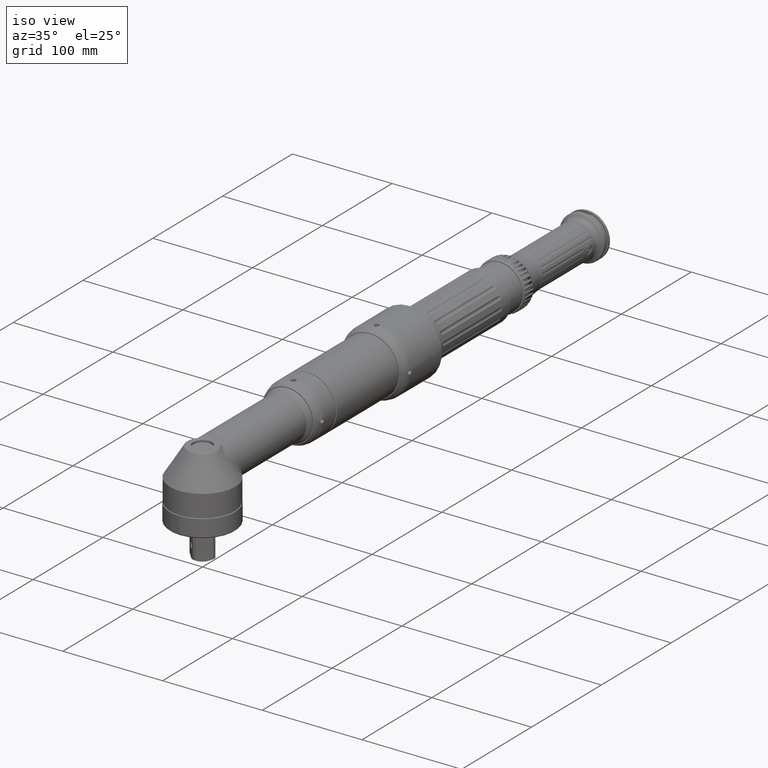
[diagram: clean part render]
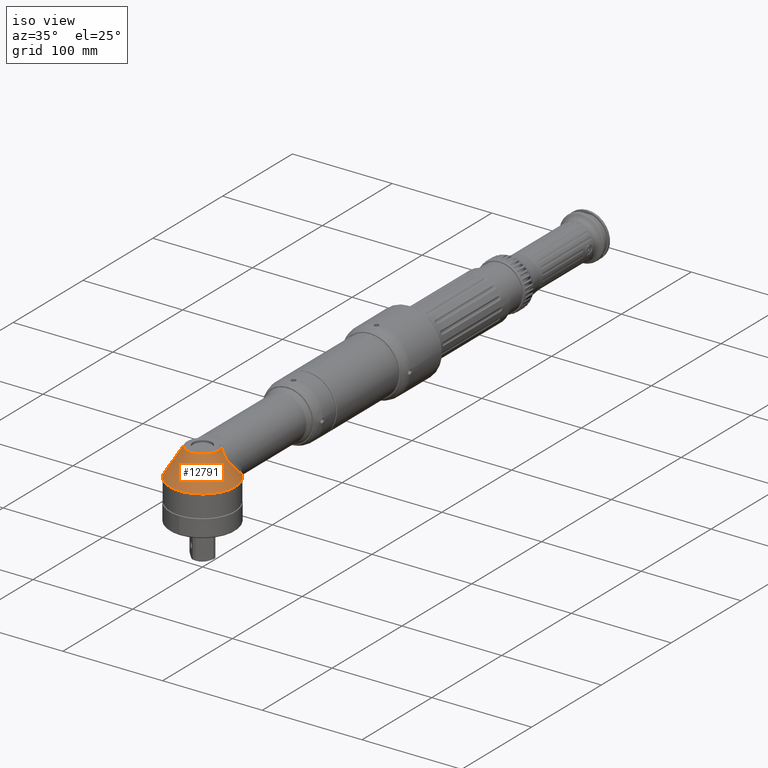
[diagram: same view with one face highlighted and labeled with its STEP entity id]
A machine part, iso view. The second image highlights one B-rep face of the part: STEP entity #12791.
In plain terms, the highlighted conical surface has half-angle 31.827 deg.
Its self-contained STEP definition (entity closure, byte-faithful):
#2552=FACE_OUTER_BOUND('',#3382,.T.);
#3382=EDGE_LOOP('',(#8397,#8398,#8399,#8400));
#4478=CIRCLE('',#13639,15.5867219646892);
#4479=CIRCLE('',#13640,33.);
#5320=B_SPLINE_CURVE_WITH_KNOTS('',3,(#19599,#19600,#19601,#19602,#19603,
#19604,#19605,#19606,#19607,#19608,#19609),.UNSPECIFIED.,.F.,.F.,(4,1,1,
1,1,1,1,1,4),(-7.39687350560686,-6.81460219103651,-6.52346653375134,-6.23233087646616,
-5.94119521918099,-5.65005956189582,-5.06778824732547,-4.48551693275512,
-3.40726503351453),.UNSPECIFIED.);
#5321=B_SPLINE_CURVE_WITH_KNOTS('',3,(#19613,#19614,#19615,#19616,#19617,
#19618,#19619,#19620,#19621,#19622,#19623,#19624),.UNSPECIFIED.,.F.,.F.,
(4,1,1,1,1,1,1,1,1,4),(-3.98960893643808,-2.91197512039487,-2.3295800963159,
-1.74718507223693,-1.45598756019744,-1.16479004815795,-0.873592536118464,
-0.582395024078977,-0.29119751203949,-2.83381824027543E-15),
 .UNSPECIFIED.);
#5445=VERTEX_POINT('',#19597);
#5446=VERTEX_POINT('',#19598);
#5447=VERTEX_POINT('',#19610);
#5448=VERTEX_POINT('',#19612);
#6640=EDGE_CURVE('',#5445,#5446,#5320,.T.);
#6641=EDGE_CURVE('',#5447,#5445,#4478,.T.);
#6642=EDGE_CURVE('',#5448,#5447,#5321,.T.);
#6643=EDGE_CURVE('',#5448,#5446,#4479,.T.);
#8397=ORIENTED_EDGE('',*,*,#6640,.F.);
#8398=ORIENTED_EDGE('',*,*,#6641,.F.);
#8399=ORIENTED_EDGE('',*,*,#6642,.F.);
#8400=ORIENTED_EDGE('',*,*,#6643,.T.);
#11927=CONICAL_SURFACE('',#13638,24.,31.8274465766731);
#12791=ADVANCED_FACE('',(#2552),#11927,.T.);
#13638=AXIS2_PLACEMENT_3D('',#19596,#15399,#15400);
#13639=AXIS2_PLACEMENT_3D('',#19611,#15401,#15402);
#13640=AXIS2_PLACEMENT_3D('',#19625,#15403,#15404);
#15399=DIRECTION('center_axis',(1.22464679914735E-16,0.,-1.));
#15400=DIRECTION('ref_axis',(-1.,0.,0.));
#15401=DIRECTION('center_axis',(-2.84915077625764E-16,-3.16319279242987E-32,
1.));
#15402=DIRECTION('ref_axis',(1.11022302462516E-16,-1.,0.));
#15403=DIRECTION('center_axis',(-1.22464679914735E-16,0.,1.));
#15404=DIRECTION('ref_axis',(1.,0.,1.22464679914735E-16));
#19596=CARTESIAN_POINT('Origin',(-6.73555739531041E-16,1.77635683940025E-14,
5.49999999999998));
#19597=CARTESIAN_POINT('',(13.4496542003608,7.8773538383927,19.0547257235564));
#19598=CARTESIAN_POINT('',(24.1633576944182,22.4751450480491,-8.99999999996307));
#19599=CARTESIAN_POINT('Ctrl Pts',(13.4496542003608,7.87735383839267,19.0547257235564));
#19600=CARTESIAN_POINT('Ctrl Pts',(14.5835538682263,7.24277462687761,17.9950600723712));
#19601=CARTESIAN_POINT('Ctrl Pts',(16.2055454026726,6.22764084460385,16.2628446742604));
#19602=CARTESIAN_POINT('Ctrl Pts',(18.3727712207136,5.28555456465171,13.3721204606103));
#19603=CARTESIAN_POINT('Ctrl Pts',(19.9529440859647,5.42918248754141,10.8509452130513));
#19604=CARTESIAN_POINT('Ctrl Pts',(21.1887740109933,6.52238193304304,8.45977980193469));
#19605=CARTESIAN_POINT('Ctrl Pts',(22.4419512567544,8.4999006416821,5.54204531813251));
#19606=CARTESIAN_POINT('Ctrl Pts',(23.5164375643155,11.4277649591789,2.12763753171971));
#19607=CARTESIAN_POINT('Ctrl Pts',(24.4446884276347,16.2631509169494,-2.96540840113903));
#19608=CARTESIAN_POINT('Ctrl Pts',(24.4471248562336,20.0265421133851,-6.64851974216371));
#19609=CARTESIAN_POINT('Ctrl Pts',(24.163424714903,22.4750886310562,-9.0000781235005));
#19610=CARTESIAN_POINT('',(-13.4496542003609,7.87735383839261,19.0547257235563));
#19611=CARTESIAN_POINT('Origin',(-1.55746858439835E-15,1.77635683940025E-14,
19.0547257235563));
#19612=CARTESIAN_POINT('',(-24.1633576944087,22.4751450480718,-8.99999999999048));
#19613=CARTESIAN_POINT('Ctrl Pts',(-24.1634250630554,22.4750866483978,-9.00008044959264));
#19614=CARTESIAN_POINT('Ctrl Pts',(-24.4469622601437,20.0279097523318,-6.64985954404027));
#19615=CARTESIAN_POINT('Ctrl Pts',(-24.4447143624917,16.2653599364309,-2.96772871687911));
#19616=CARTESIAN_POINT('Ctrl Pts',(-23.5173316032636,11.4312266661791,2.12410595864679));
#19617=CARTESIAN_POINT('Ctrl Pts',(-22.4429205230096,8.50068942570139,5.53973554064845));
#19618=CARTESIAN_POINT('Ctrl Pts',(-21.1899537328314,6.52355439687635,8.45736399372174));
#19619=CARTESIAN_POINT('Ctrl Pts',(-19.9539093959157,5.4245554599633,10.8506374604466));
#19620=CARTESIAN_POINT('Ctrl Pts',(-18.3740776721416,5.28772629834773,13.3694763834177));
#19621=CARTESIAN_POINT('Ctrl Pts',(-16.748449735141,5.98895892175499,15.5395557416202));
#19622=CARTESIAN_POINT('Ctrl Pts',(-15.1263105601609,6.90939972967544,17.4124659156998));
#19623=CARTESIAN_POINT('Ctrl Pts',(-14.0167244885967,7.55999682120635,18.5247803295495));
#19624=CARTESIAN_POINT('Ctrl Pts',(-13.4496542003609,7.87735383839261,19.0547257235563));
#19625=CARTESIAN_POINT('Origin',(1.10218211923262E-15,1.77635683940025E-14,
-9.00000000000002));